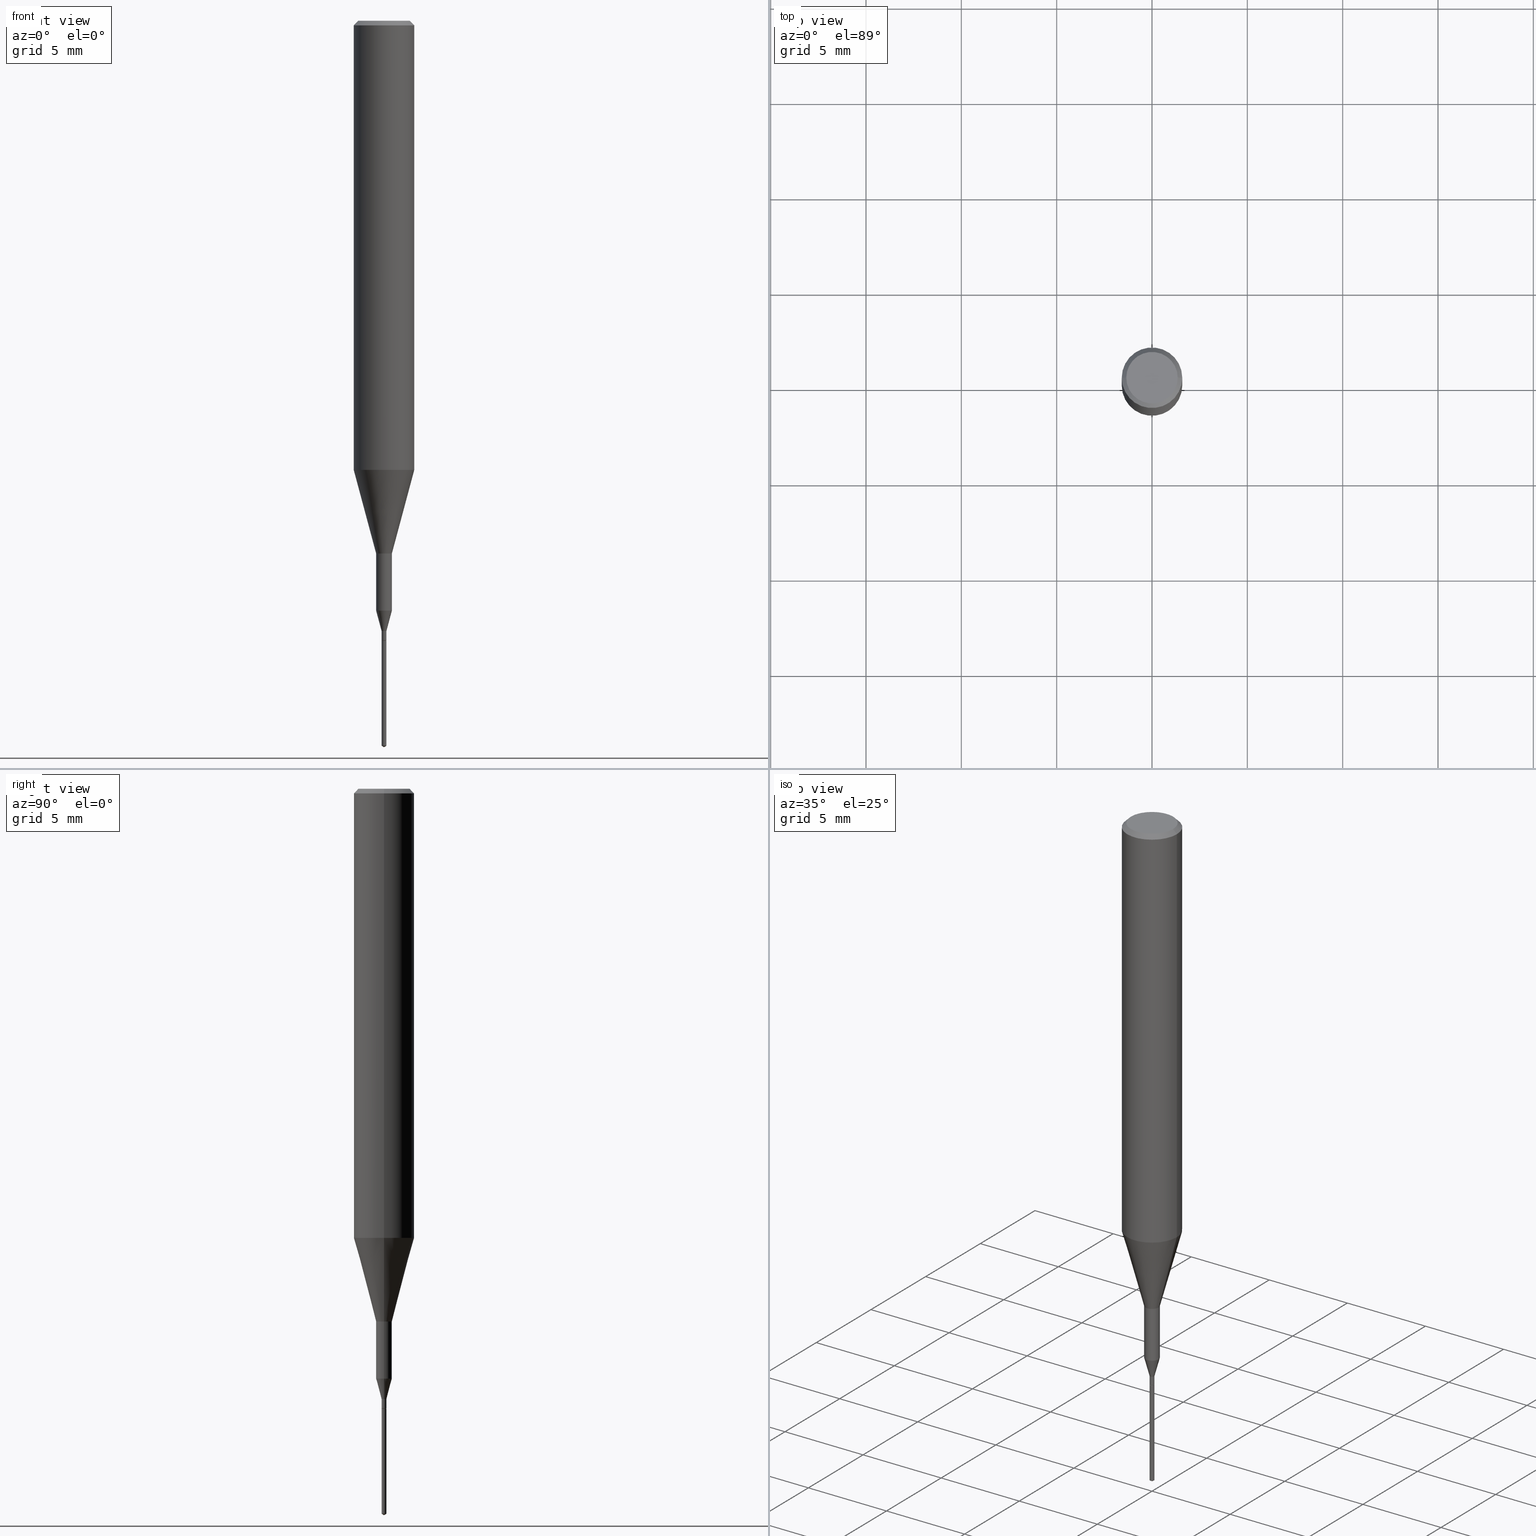
[diagram: canonical four-view strip — front | top / right | iso, engineering-drawing reading convention]
A machine part, canonical four-view strip (front | top / right | iso — engineering-drawing reading convention). The complete STEP part file that produces these views, byte-faithful:
ISO-10303-21;
HEADER;
FILE_DESCRIPTION (( 'STEP AP203' ),
    '1' );
FILE_NAME ('07091.STEP',
    '2024-04-19T13:29:49',
    ( '' ),
    ( '' ),
    'SwSTEP 2.0',
    'SolidWorks 2023',
    '' );
FILE_SCHEMA (( 'CONFIG_CONTROL_DESIGN' ));
ENDSEC;

DATA;
#1 = DESIGN_CONTEXT ( 'detailed design', #218, 'design' ) ;
#2 = EDGE_LOOP ( 'NONE', ( #406, #477, #11, #392 ) ) ;
#3 = DIRECTION ( 'NONE',  ( 1.000000000000000000, -6.982962677686311676E-15, 0.000000000000000000 ) ) ;
#4 = CONICAL_SURFACE ( 'NONE', #195, 65.52281426576575996, 1.029744258676636548 ) ;
#5 = EDGE_LOOP ( 'NONE', ( #154, #497, #470, #178 ) ) ;
#6 = LINE ( 'NONE', #279, #380 ) ;
#7 = LOCAL_TIME ( 9, 29, 49.00000000000000000, #39 ) ;
#8 = PRODUCT_DEFINITION ( 'UNKNOWN', '', #568, #1 ) ;
#9 = EDGE_LOOP ( 'NONE', ( #299, #569, #191, #332 ) ) ;
#10 = DIRECTION ( 'NONE',  ( 1.000000000000000000, -6.982962677686224112E-15, 0.000000000000000000 ) ) ;
#11 = ORIENTED_EDGE ( 'NONE', *, *, #118, .T. ) ;
#12 = ORIENTED_EDGE ( 'NONE', *, *, #545, .F. ) ;
#13 = DIRECTION ( 'NONE',  ( 6.982962677686265922E-15, 1.000000000000000000, -3.487224383137281571E-15 ) ) ;
#14 = ORIENTED_EDGE ( 'NONE', *, *, #181, .F. ) ;
#15 = AXIS2_PLACEMENT_3D ( 'NONE', #403, #413, #93 ) ;
#16 = CARTESIAN_POINT ( 'NONE',  ( 3.130200071916974821E-29, -4.469096113719226630E-15, -1.280000000000000027 ) ) ;
#17 = CONICAL_SURFACE ( 'NONE', #15, 0.01625000000000000056, 0.2617993877991491858 ) ;
#18 = CIRCLE ( 'NONE', #44, 0.005000000000000014849 ) ;
#19 = FACE_OUTER_BOUND ( 'NONE', #2, .T. ) ;
#20 = ORIENTED_EDGE ( 'NONE', *, *, #532, .T. ) ;
#21 = DIRECTION ( 'NONE',  ( -2.445468806185136597E-29, 3.491481338843145583E-15, 1.000000000000000000 ) ) ;
#22 = CARTESIAN_POINT ( 'NONE',  ( 0.01625000000000000056, -4.366147790764551922E-15, -1.218014428414850414 ) ) ;
#23 = EDGE_CURVE ( 'NONE', #98, #559, #72, .T. ) ;
#24 = ORIENTED_EDGE ( 'NONE', *, *, #155, .T. ) ;
#25 = DIRECTION ( 'NONE',  ( 1.000000000000000000, -6.982962677686224112E-15, 0.000000000000000000 ) ) ;
#26 = AXIS2_PLACEMENT_3D ( 'NONE', #206, #530, #68 ) ;
#27 = EDGE_CURVE ( 'NONE', #65, #187, #417, .T. ) ;
#28 = CARTESIAN_POINT ( 'NONE',  ( 3.552713678804161195E-17, 0.004999999999994772515, -1.496995696904862116 ) ) ;
#29 = DIRECTION ( 'NONE',  ( 0.7071067811866128539, -2.468850131082941397E-15, 0.7071067811864821806 ) ) ;
#30 = CARTESIAN_POINT ( 'NONE',  ( 2.267909797027042920E-29, -3.237974131778804114E-15, -0.9273926501499395458 ) ) ;
#31 = LINE ( 'NONE', #67, #242 ) ;
#32 = CARTESIAN_POINT ( 'NONE',  ( -3.491481338839468973E-17, -0.005000000000005223356, -1.496995696904862116 ) ) ;
#33 = ADVANCED_FACE ( 'NONE', ( #525 ), #352, .T. ) ;
#34 = ORIENTED_EDGE ( 'NONE', *, *, #308, .T. ) ;
#35 = CONICAL_SURFACE ( 'NONE', #409, 65.52281426576575996, 1.029744258676636548 ) ;
#36 = DIRECTION ( 'NONE',  ( 1.000000000000000000, -6.982962677686265922E-15, 4.876176775795935793E-29 ) ) ;
#37 = PERSON_AND_ORGANIZATION ( #369, #459 ) ;
#38 = DIRECTION ( 'NONE',  ( -2.445468806185136597E-29, 3.491481338843145583E-15, 1.000000000000000000 ) ) ;
#39 = COORDINATED_UNIVERSAL_TIME_OFFSET ( 5, 0, .BEHIND. ) ;
#40 = DIRECTION ( 'NONE',  ( -2.438088387897960049E-29, 3.491481338843145188E-15, 1.000000000000000000 ) ) ;
#41 = APPLICATION_CONTEXT ( 'configuration controlled 3d designs of mechanical parts and assemblies' ) ;
#42 = ADVANCED_FACE ( 'NONE', ( #579 ), #260, .T. ) ;
#43 = ORIENTED_EDGE ( 'NONE', *, *, #60, .F. ) ;
#44 = AXIS2_PLACEMENT_3D ( 'NONE', #449, #38, #177 ) ;
#45 = APPROVAL_PERSON_ORGANIZATION ( #87, #287, #92 ) ;
#46 = CARTESIAN_POINT ( 'NONE',  ( 2.267909797027042920E-29, -3.237974131778804114E-15, -0.9273926501499395458 ) ) ;
#47 = EDGE_LOOP ( 'NONE', ( #284, #229, #337, #524 ) ) ;
#48 = CARTESIAN_POINT ( 'NONE',  ( 0.06250000000000011102, -3.674409299134196572E-15, -0.9273926501499395458 ) ) ;
#49 = EDGE_CURVE ( 'NONE', #559, #509, #146, .T. ) ;
#50 = FACE_OUTER_BOUND ( 'NONE', #133, .T. ) ;
#51 = ADVANCED_FACE ( 'NONE', ( #296 ), #257, .T. ) ;
#52 = CLOSED_SHELL ( 'NONE', ( #549, #517, #535, #104, #219, #576, #372, #255, #492, #51, #33, #42, #244, #480, #230, #83 ) ) ;
#53 = FACE_OUTER_BOUND ( 'NONE', #474, .T. ) ;
#54 = CC_DESIGN_APPROVAL ( #424, ( #197 ) ) ;
#55 = ORIENTED_EDGE ( 'NONE', *, *, #155, .F. ) ;
#56 = VERTEX_POINT ( 'NONE', #113 ) ;
#57 = CARTESIAN_POINT ( 'NONE',  ( 3.130200071916974821E-29, -4.469096113719226630E-15, -1.280000000000000027 ) ) ;
#58 = FACE_OUTER_BOUND ( 'NONE', #348, .T. ) ;
#59 = ORIENTED_EDGE ( 'NONE', *, *, #433, .F. ) ;
#60 = EDGE_CURVE ( 'NONE', #374, #562, #31, .T. ) ;
#61 = CIRCLE ( 'NONE', #291, 0.004500000000000000527 ) ;
#62 = DIRECTION ( 'NONE',  ( -0.7071067811865452413, 2.468850131082233000E-15, -0.7071067811865497932 ) ) ;
#63 = CONICAL_SURFACE ( 'NONE', #399, 0.004500000000000000527, 0.7853981633975407606 ) ;
#64 = LOCAL_TIME ( 9, 29, 49.00000000000000000, #448 ) ;
#65 = VERTEX_POINT ( 'NONE', #22 ) ;
#66 = CARTESIAN_POINT ( 'NONE',  ( -0.06250000000000000000, -1.191264174815165938E-15, -0.009375000000000069042 ) ) ;
#67 = CARTESIAN_POINT ( 'NONE',  ( -0.06250000000000005551, 4.440892098500630106E-16, -3.074334431409318916E-30 ) ) ;
#68 = DIRECTION ( 'NONE',  ( 1.000000000000000000, -6.982962677686265922E-15, 4.876176775795935793E-29 ) ) ;
#69 = DIRECTION ( 'NONE',  ( -5.985567269335877382E-15, -0.8571673007021012314, 0.5150380749100724742 ) ) ;
#70 = CC_DESIGN_DATE_AND_TIME_ASSIGNMENT ( #311, #261, ( #197 ) ) ;
#71 = CARTESIAN_POINT ( 'NONE',  ( 0.01625000000000000056, -4.366147790764551922E-15, -1.218014428414850414 ) ) ;
#72 = LINE ( 'NONE', #120, #184 ) ;
#73 = VECTOR ( 'NONE', #297, 39.37007874015748143 ) ;
#74 = DIRECTION ( 'NONE',  ( -2.445468806185136597E-29, 3.491481338843145583E-15, 1.000000000000000000 ) ) ;
#75 = EDGE_CURVE ( 'NONE', #316, #188, #61, .T. ) ;
#76 = DIRECTION ( 'NONE',  ( -2.445468806185136597E-29, 3.491481338843145583E-15, 1.000000000000000000 ) ) ;
#77 = CARTESIAN_POINT ( 'NONE',  ( 0.000000000000000000, 0.000000000000000000, 0.000000000000000000 ) ) ;
#78 = DIRECTION ( 'NONE',  ( 0.000000000000000000, 0.000000000000000000, 1.000000000000000000 ) ) ;
#79 = DIRECTION ( 'NONE',  ( -2.445468806185136877E-29, 3.491481338843145188E-15, 1.000000000000000000 ) ) ;
#80 = PERSON_AND_ORGANIZATION_ROLE ( 'design_owner' ) ;
#81 = CARTESIAN_POINT ( 'NONE',  ( -0.004999999999999991430, -4.431823236261800085E-15, -1.279500000000000082 ) ) ;
#82 = ORIENTED_EDGE ( 'NONE', *, *, #414, .T. ) ;
#83 = ADVANCED_FACE ( 'NONE', ( #534 ), #482, .F. ) ;
#84 = COORDINATED_UNIVERSAL_TIME_OFFSET ( 5, 0, .BEHIND. ) ;
#85 = DIRECTION ( 'NONE',  ( -1.000000000000000000, 6.982962677686266711E-15, 0.000000000000000000 ) ) ;
#86 = APPROVAL ( #274, 'UNSPECIFIED' ) ;
#87 = PERSON_AND_ORGANIZATION ( #369, #459 ) ;
#88 = PLANE ( 'NONE',  #457 ) ;
#89 = ORIENTED_EDGE ( 'NONE', *, *, #131, .F. ) ;
#90 = CIRCLE ( 'NONE', #129, 0.004999999999999991430 ) ;
#91 = VECTOR ( 'NONE', #429, 39.37007874015748143 ) ;
#92 = APPROVAL_ROLE ( '' ) ;
#93 = DIRECTION ( 'NONE',  ( 1.000000000000000000, -6.982962677686258033E-15, 0.000000000000000000 ) ) ;
#94 = EDGE_CURVE ( 'NONE', #140, #276, #90, .T. ) ;
#95 = ORIENTED_EDGE ( 'NONE', *, *, #210, .F. ) ;
#96 = DIRECTION ( 'NONE',  ( -2.445468806185136597E-29, 3.491481338843145583E-15, 1.000000000000000000 ) ) ;
#97 = LINE ( 'NONE', #510, #343 ) ;
#98 = VERTEX_POINT ( 'NONE', #485 ) ;
#99 = CIRCLE ( 'NONE', #314, 0.004999999999999991430 ) ;
#100 = CARTESIAN_POINT ( 'NONE',  ( -9.272647440831351840E-28, 1.320560130707024342E-13, 37.87007874015748143 ) ) ;
#101 = LOCAL_TIME ( 9, 29, 49.00000000000000000, #495 ) ;
#102 = DIRECTION ( 'NONE',  ( -2.448441422466597749E-29, 3.487224383137281571E-15, 1.000000000000000000 ) ) ;
#103 = VERTEX_POINT ( 'NONE', #124 ) ;
#104 = ADVANCED_FACE ( 'NONE', ( #487 ), #254, .T. ) ;
#105 = EDGE_LOOP ( 'NONE', ( #112, #340, #142, #157 ) ) ;
#106 = VERTEX_POINT ( 'NONE', #208 ) ;
#107 = DIRECTION ( 'NONE',  ( -0.7071067811866128539, 7.493145998870590818E-15, 0.7071067811864821806 ) ) ;
#108 = ORIENTED_EDGE ( 'NONE', *, *, #200, .F. ) ;
#109 =( CONVERSION_BASED_UNIT ( 'INCH', #520 ) LENGTH_UNIT ( ) NAMED_UNIT ( #386 ) );
#110 = AXIS2_PLACEMENT_3D ( 'NONE', #435, #574, #481 ) ;
#111 = EDGE_CURVE ( 'NONE', #562, #333, #121, .T. ) ;
#112 = ORIENTED_EDGE ( 'NONE', *, *, #472, .F. ) ;
#113 = CARTESIAN_POINT ( 'NONE',  ( -0.05312499999999999861, 3.873362110279099094E-16, -5.787680772773044021E-18 ) ) ;
#114 = EDGE_LOOP ( 'NONE', ( #288, #220, #14, #551 ) ) ;
#115 = DIRECTION ( 'NONE',  ( 1.000000000000000000, -6.982962677686224112E-15, 0.000000000000000000 ) ) ;
#116 = ORIENTED_EDGE ( 'NONE', *, *, #210, .T. ) ;
#117 = LINE ( 'NONE', #301, #498 ) ;
#118 = EDGE_CURVE ( 'NONE', #188, #276, #117, .T. ) ;
#119 = CARTESIAN_POINT ( 'NONE',  ( 2.267909797027042920E-29, -3.237974131778804114E-15, -0.9273926501499395458 ) ) ;
#120 = CARTESIAN_POINT ( 'NONE',  ( 3.665052236019357010E-29, -5.241734381312934415E-15, -1.500000000000000222 ) ) ;
#121 = CIRCLE ( 'NONE', #437, 0.06250000000000000000 ) ;
#122 = VECTOR ( 'NONE', #183, 39.37007874015748143 ) ;
#123 = LINE ( 'NONE', #523, #506 ) ;
#124 = CARTESIAN_POINT ( 'NONE',  ( -0.005000000000000014849, -4.397781293208080371E-15, -1.260000000000000231 ) ) ;
#125 = DATE_AND_TIME ( #127, #101 ) ;
#126 = DIRECTION ( 'NONE',  ( 1.000000000000000000, -6.982962677686265922E-15, 0.000000000000000000 ) ) ;
#127 = CALENDAR_DATE ( 2024, 19, 4 ) ;
#128 = LINE ( 'NONE', #318, #455 ) ;
#129 = AXIS2_PLACEMENT_3D ( 'NONE', #387, #159, #346 ) ;
#130 = VECTOR ( 'NONE', #587, 39.37007874015748143 ) ;
#131 = EDGE_CURVE ( 'NONE', #434, #421, #566, .T. ) ;
#132 = CARTESIAN_POINT ( 'NONE',  ( -0.01625000000000000056, -4.137211452691134060E-15, -1.218014428414850414 ) ) ;
#133 = EDGE_LOOP ( 'NONE', ( #479, #192, #423 ) ) ;
#134 = DIRECTION ( 'NONE',  ( -6.982962677686265922E-15, -1.000000000000000000, 0.000000000000000000 ) ) ;
#135 = COORDINATED_UNIVERSAL_TIME_OFFSET ( 5, 0, .BEHIND. ) ;
#136 = DIRECTION ( 'NONE',  ( -2.448441422466597749E-29, 3.487224383137281571E-15, 1.000000000000000000 ) ) ;
#137 = AXIS2_PLACEMENT_3D ( 'NONE', #436, #531, #441 ) ;
#138 = EDGE_CURVE ( 'NONE', #106, #103, #324, .T. ) ;
#139 = AXIS2_PLACEMENT_3D ( 'NONE', #420, #326, #199 ) ;
#140 = VERTEX_POINT ( 'NONE', #81 ) ;
#141 = DIRECTION ( 'NONE',  ( 1.000000000000000000, -6.982962677686266711E-15, 4.876176775795935232E-29 ) ) ;
#142 = ORIENTED_EDGE ( 'NONE', *, *, #561, .T. ) ;
#143 = ORIENTED_EDGE ( 'NONE', *, *, #60, .T. ) ;
#144 = CARTESIAN_POINT ( 'NONE',  ( -0.01624999999999999709, -3.931188865428788594E-15, -1.100000000000000089 ) ) ;
#145 = DIRECTION ( 'NONE',  ( -2.448441422466597749E-29, 3.487224383137281571E-15, 1.000000000000000000 ) ) ;
#146 = CIRCLE ( 'NONE', #262, 0.004999999999999999237 ) ;
#147 = VECTOR ( 'NONE', #62, 39.37007874015748143 ) ;
#148 = ORIENTED_EDGE ( 'NONE', *, *, #75, .F. ) ;
#149 = DIRECTION ( 'NONE',  ( -2.445468806185136597E-29, 3.491481338843145583E-15, 1.000000000000000000 ) ) ;
#150 = CC_DESIGN_SECURITY_CLASSIFICATION ( #197, ( #568 ) ) ;
#151 = CC_DESIGN_PERSON_AND_ORGANIZATION_ASSIGNMENT ( #502, #543, ( #197 ) ) ;
#152 = DIRECTION ( 'NONE',  ( -2.448441422466597749E-29, 3.487224383137281571E-15, 1.000000000000000000 ) ) ;
#153 = FACE_OUTER_BOUND ( 'NONE', #5, .T. ) ;
#154 = ORIENTED_EDGE ( 'NONE', *, *, #327, .F. ) ;
#155 = EDGE_CURVE ( 'NONE', #335, #333, #590, .T. ) ;
#156 = AXIS2_PLACEMENT_3D ( 'NONE', #77, #74, #349 ) ;
#157 = ORIENTED_EDGE ( 'NONE', *, *, #528, .F. ) ;
#158 = DIRECTION ( 'NONE',  ( 1.000000000000000000, -6.982962677686258033E-15, 0.000000000000000000 ) ) ;
#159 = DIRECTION ( 'NONE',  ( -2.445468806185136597E-29, 3.491481338843145583E-15, 1.000000000000000000 ) ) ;
#160 = ORIENTED_EDGE ( 'NONE', *, *, #302, .T. ) ;
#161 = CARTESIAN_POINT ( 'NONE',  ( 2.292627005798582813E-31, -3.273263755165473266E-17, -0.009375000000000069042 ) ) ;
#162 = DIRECTION ( 'NONE',  ( -2.445468806185136597E-29, 3.491481338843145583E-15, 1.000000000000000000 ) ) ;
#163 = DIRECTION ( 'NONE',  ( 1.000000000000000000, -6.982962677686259611E-15, 0.000000000000000000 ) ) ;
#164 = CARTESIAN_POINT ( 'NONE',  ( 3.130200071916974821E-29, -4.469096113719226630E-15, -1.280000000000000027 ) ) ;
#165 = VECTOR ( 'NONE', #136, 39.37007874015748143 ) ;
#166 = CARTESIAN_POINT ( 'NONE',  ( 3.130200071916974821E-29, -4.469096113719226630E-15, -1.280000000000000027 ) ) ;
#167 = CONICAL_SURFACE ( 'NONE', #325, 0.06250000000000011102, 0.2617993877991501850 ) ;
#168 = EDGE_CURVE ( 'NONE', #98, #509, #172, .T. ) ;
#169 = DIRECTION ( 'NONE',  ( 1.000000000000000000, 0.000000000000000000, 0.000000000000000000 ) ) ;
#170 = DIRECTION ( 'NONE',  ( 1.000000000000000000, -6.982962677686265922E-15, 4.876176775795935793E-29 ) ) ;
#171 = DATE_AND_TIME ( #360, #7 ) ;
#172 = LINE ( 'NONE', #313, #281 ) ;
#173 = CC_DESIGN_PERSON_AND_ORGANIZATION_ASSIGNMENT ( #37, #223, ( #568 ) ) ;
#174 = LINE ( 'NONE', #48, #512 ) ;
#175 = AXIS2_PLACEMENT_3D ( 'NONE', #203, #356, #573 ) ;
#176 = AXIS2_PLACEMENT_3D ( 'NONE', #271, #310, #496 ) ;
#177 = DIRECTION ( 'NONE',  ( 1.000000000000000000, -6.982962677686311676E-15, 0.000000000000000000 ) ) ;
#178 = ORIENTED_EDGE ( 'NONE', *, *, #365, .F. ) ;
#179 = APPROVAL_ROLE ( '' ) ;
#180 = FACE_OUTER_BOUND ( 'NONE', #307, .T. ) ;
#181 = EDGE_CURVE ( 'NONE', #421, #434, #466, .T. ) ;
#182 = MANIFOLD_SOLID_BREP ( 'Body-Move/Copy2[2]', #52 ) ;
#183 = DIRECTION ( 'NONE',  ( -2.448441422466597749E-29, 3.487224383137281571E-15, 1.000000000000000000 ) ) ;
#184 = VECTOR ( 'NONE', #69, 39.37007874015748854 ) ;
#185 = AXIS2_PLACEMENT_3D ( 'NONE', #164, #396, #115 ) ;
#186 = LINE ( 'NONE', #463, #546 ) ;
#187 = VERTEX_POINT ( 'NONE', #132 ) ;
#188 = VERTEX_POINT ( 'NONE', #217 ) ;
#189 = ORIENTED_EDGE ( 'NONE', *, *, #131, .T. ) ;
#190 = CYLINDRICAL_SURFACE ( 'NONE', #447, 0.005000000000000000104 ) ;
#191 = ORIENTED_EDGE ( 'NONE', *, *, #27, .F. ) ;
#192 = ORIENTED_EDGE ( 'NONE', *, *, #23, .T. ) ;
#193 = EDGE_CURVE ( 'NONE', #421, #335, #174, .T. ) ;
#194 = LINE ( 'NONE', #556, #293 ) ;
#195 = AXIS2_PLACEMENT_3D ( 'NONE', #422, #145, #465 ) ;
#196 = DIRECTION ( 'NONE',  ( 2.448441422466597469E-29, -3.487224383137281571E-15, -1.000000000000000000 ) ) ;
#197 = SECURITY_CLASSIFICATION ( '', '', #317 ) ;
#198 = ORIENTED_EDGE ( 'NONE', *, *, #528, .T. ) ;
#199 = DIRECTION ( 'NONE',  ( -6.982962677686265922E-15, -1.000000000000000000, 0.000000000000000000 ) ) ;
#200 = EDGE_CURVE ( 'NONE', #335, #374, #538, .T. ) ;
#201 = ORIENTED_EDGE ( 'NONE', *, *, #23, .F. ) ;
#202 =( NAMED_UNIT ( * ) PLANE_ANGLE_UNIT ( ) SI_UNIT ( $, .RADIAN. ) );
#203 = CARTESIAN_POINT ( 'NONE',  ( 7.076796394983739835E-47, -1.010378970665454992E-32, -2.893840386385196200E-18 ) ) ;
#204 = AXIS2_PLACEMENT_3D ( 'NONE', #504, #540, #364 ) ;
#205 = EDGE_LOOP ( 'NONE', ( #494, #160, #108, #486 ) ) ;
#206 = CARTESIAN_POINT ( 'NONE',  ( 0.000000000000000000, 0.000000000000000000, 0.000000000000000000 ) ) ;
#207 = CIRCLE ( 'NONE', #426, 0.01625000000000000056 ) ;
#208 = CARTESIAN_POINT ( 'NONE',  ( 0.005000000000000014849, -4.434181300330795770E-15, -1.260000000000000231 ) ) ;
#209 = CARTESIAN_POINT ( 'NONE',  ( 2.690015686803650369E-29, -3.840629472727460101E-15, -1.100000000000000089 ) ) ;
#210 = EDGE_CURVE ( 'NONE', #140, #103, #128, .T. ) ;
#211 = PRODUCT_DEFINITION_SHAPE ( 'NONE', 'NONE',  #8 ) ;
#212 = DIRECTION ( 'NONE',  ( -2.445468806185136877E-29, 3.491481338843145188E-15, 1.000000000000000000 ) ) ;
#213 = CARTESIAN_POINT ( 'NONE',  ( 0.000000000000000000, 0.000000000000000000, 0.000000000000000000 ) ) ;
#214 = CARTESIAN_POINT ( 'NONE',  ( 2.978616290171935481E-29, -4.252674647252150246E-15, -1.218014428414850414 ) ) ;
#215 = AXIS2_PLACEMENT_3D ( 'NONE', #537, #541, #134 ) ;
#216 = DATE_AND_TIME ( #319, #439 ) ;
#217 = CARTESIAN_POINT ( 'NONE',  ( 0.004500000000000000527, -4.500519445768814483E-15, -1.280000000000000027 ) ) ;
#218 = APPLICATION_CONTEXT ( 'configuration controlled 3d designs of mechanical parts and assemblies' ) ;
#219 = ADVANCED_FACE ( 'NONE', ( #268 ), #17, .T. ) ;
#220 = ORIENTED_EDGE ( 'NONE', *, *, #433, .T. ) ;
#221 = PERSON_AND_ORGANIZATION ( #369, #459 ) ;
#222 = FACE_OUTER_BOUND ( 'NONE', #430, .T. ) ;
#223 = PERSON_AND_ORGANIZATION_ROLE ( 'creator' ) ;
#224 = CARTESIAN_POINT ( 'NONE',  ( 0.004999999999999991430, -4.502265186438236775E-15, -1.279500000000000082 ) ) ;
#225 = AXIS2_PLACEMENT_3D ( 'NONE', #209, #395, #163 ) ;
#226 = CIRCLE ( 'NONE', #215, 0.005000000000000000104 ) ;
#227 = PERSON_AND_ORGANIZATION ( #369, #459 ) ;
#228 = FACE_OUTER_BOUND ( 'NONE', #303, .T. ) ;
#229 = ORIENTED_EDGE ( 'NONE', *, *, #390, .T. ) ;
#230 = ADVANCED_FACE ( 'NONE', ( #222 ), #488, .T. ) ;
#231 = ORIENTED_EDGE ( 'NONE', *, *, #49, .T. ) ;
#232 = DIRECTION ( 'NONE',  ( -2.445468806185136597E-29, 3.491481338843145583E-15, 1.000000000000000000 ) ) ;
#233 = DIRECTION ( 'NONE',  ( -2.445468806185136597E-29, 3.491481338843145583E-15, 1.000000000000000000 ) ) ;
#234 = AXIS2_PLACEMENT_3D ( 'NONE', #443, #298, #170 ) ;
#235 = CONICAL_SURFACE ( 'NONE', #567, 0.06250000000000011102, 0.2617993877991501850 ) ;
#236 = DIRECTION ( 'NONE',  ( -6.982962677686265922E-15, -1.000000000000000000, 0.000000000000000000 ) ) ;
#237 = EDGE_CURVE ( 'NONE', #559, #398, #368, .T. ) ;
#238 = DIRECTION ( 'NONE',  ( -2.448441422466597749E-29, 3.487224383137281571E-15, 1.000000000000000000 ) ) ;
#239 = ORIENTED_EDGE ( 'NONE', *, *, #552, .F. ) ;
#240 = EDGE_LOOP ( 'NONE', ( #95, #519, #82, #427 ) ) ;
#241 = DIRECTION ( 'NONE',  ( 1.000000000000000000, -6.982962677686344019E-15, 0.000000000000000000 ) ) ;
#242 = VECTOR ( 'NONE', #212, 39.37007874015748143 ) ;
#243 = ORIENTED_EDGE ( 'NONE', *, *, #200, .T. ) ;
#244 = ADVANCED_FACE ( 'NONE', ( #180 ), #167, .T. ) ;
#245 = CYLINDRICAL_SURFACE ( 'NONE', #371, 0.06250000000000005551 ) ;
#246 = ORIENTED_EDGE ( 'NONE', *, *, #111, .T. ) ;
#247 = ORIENTED_EDGE ( 'NONE', *, *, #49, .F. ) ;
#248 = ORIENTED_EDGE ( 'NONE', *, *, #357, .F. ) ;
#249 = DIRECTION ( 'NONE',  ( -1.000000000000000000, 6.982962677686266711E-15, 0.000000000000000000 ) ) ;
#250 = DIRECTION ( 'NONE',  ( -2.445468806185136597E-29, 3.491481338843145583E-15, 1.000000000000000000 ) ) ;
#251 = AXIS2_PLACEMENT_3D ( 'NONE', #544, #462, #126 ) ;
#252 = LINE ( 'NONE', #71, #73 ) ;
#253 = CC_DESIGN_APPROVAL ( #287, ( #8 ) ) ;
#254 = CYLINDRICAL_SURFACE ( 'NONE', #137, 0.01624999999999999709 ) ;
#255 = ADVANCED_FACE ( 'NONE', ( #228 ), #88, .F. ) ;
#256 = CARTESIAN_POINT ( 'NONE',  ( 0.05312499999999999861, -4.129888592719939842E-16, -5.787680772767651417E-18 ) ) ;
#257 = CYLINDRICAL_SURFACE ( 'NONE', #234, 0.005000000000000003574 ) ;
#258 = CARTESIAN_POINT ( 'NONE',  ( 2.978616290171935481E-29, -4.252674647252150246E-15, -1.218014428414850414 ) ) ;
#259 = ORIENTED_EDGE ( 'NONE', *, *, #273, .F. ) ;
#260 = CYLINDRICAL_SURFACE ( 'NONE', #156, 0.01624999999999999709 ) ;
#261 = DATE_TIME_ROLE ( 'classification_date' ) ;
#262 = AXIS2_PLACEMENT_3D ( 'NONE', #432, #446, #575 ) ;
#263 = EDGE_CURVE ( 'NONE', #103, #106, #18, .T. ) ;
#264 = CARTESIAN_POINT ( 'NONE',  ( 2.292627005798582813E-31, -3.273263755165473266E-17, -0.009375000000000069042 ) ) ;
#265 = AXIS2_PLACEMENT_3D ( 'NONE', #570, #76, #431 ) ;
#266 = DIRECTION ( 'NONE',  ( -2.445468806185136877E-29, 3.491481338843145188E-15, 1.000000000000000000 ) ) ;
#267 = ADVANCED_BREP_SHAPE_REPRESENTATION ( '07091', ( #376, #182, #489 ), #522 ) ;
#268 = FACE_OUTER_BOUND ( 'NONE', #9, .T. ) ;
#269 = UNCERTAINTY_MEASURE_WITH_UNIT (LENGTH_MEASURE( 1.000000000000000082E-05 ), #109, 'distance_accuracy_value', 'NONE');
#270 = PERSON_AND_ORGANIZATION ( #369, #459 ) ;
#271 = CARTESIAN_POINT ( 'NONE',  ( 1.415359278996747967E-46, -2.020757941330909984E-32, -5.787680772770392401E-18 ) ) ;
#272 = AXIS2_PLACEMENT_3D ( 'NONE', #264, #320, #85 ) ;
#273 = EDGE_CURVE ( 'NONE', #398, #585, #529, .T. ) ;
#274 = APPROVAL_STATUS ( 'not_yet_approved' ) ;
#275 = DIRECTION ( 'NONE',  ( 0.2588190451025214611, 1.565188264969620982E-15, 0.9659258262890679791 ) ) ;
#276 = VERTEX_POINT ( 'NONE', #224 ) ;
#277 = EDGE_LOOP ( 'NONE', ( #243, #143, #12, #55 ) ) ;
#278 = CARTESIAN_POINT ( 'NONE',  ( 3.130200071916974821E-29, -4.469096113719226630E-15, -1.280000000000000027 ) ) ;
#279 = CARTESIAN_POINT ( 'NONE',  ( -0.004500000000000000527, -4.437121690610021699E-15, -1.280000000000000027 ) ) ;
#280 = CC_DESIGN_DATE_AND_TIME_ASSIGNMENT ( #171, #578, ( #8 ) ) ;
#281 = VECTOR ( 'NONE', #452, 39.37007874015748854 ) ;
#282 = CONICAL_SURFACE ( 'NONE', #438, 0.06250000000000000000, 0.7853981633974450594 ) ;
#283 = CARTESIAN_POINT ( 'NONE',  ( 3.130200071916974821E-29, -4.469096113719226630E-15, -1.280000000000000027 ) ) ;
#284 = ORIENTED_EDGE ( 'NONE', *, *, #308, .F. ) ;
#285 = ORIENTED_EDGE ( 'NONE', *, *, #552, .T. ) ;
#286 = LINE ( 'NONE', #338, #147 ) ;
#287 = APPROVAL ( #536, 'UNSPECIFIED' ) ;
#288 = ORIENTED_EDGE ( 'NONE', *, *, #27, .T. ) ;
#289 = ORIENTED_EDGE ( 'NONE', *, *, #414, .F. ) ;
#290 = DIRECTION ( 'NONE',  ( -2.445468806185136877E-29, 3.491481338843145188E-15, 1.000000000000000000 ) ) ;
#291 = AXIS2_PLACEMENT_3D ( 'NONE', #166, #250, #25 ) ;
#292 = EDGE_LOOP ( 'NONE', ( #59, #198, #341, #89 ) ) ;
#293 = VECTOR ( 'NONE', #378, 39.37007874015748143 ) ;
#294 = CYLINDRICAL_SURFACE ( 'NONE', #110, 0.06250000000000005551 ) ;
#295 = ORIENTED_EDGE ( 'NONE', *, *, #336, .T. ) ;
#296 = FACE_OUTER_BOUND ( 'NONE', #240, .T. ) ;
#297 = DIRECTION ( 'NONE',  ( 0.2588190451025205174, 1.565188264969628476E-15, 0.9659258262890684232 ) ) ;
#298 = DIRECTION ( 'NONE',  ( -2.445468806185136597E-29, 3.491481338843145583E-15, 1.000000000000000000 ) ) ;
#299 = ORIENTED_EDGE ( 'NONE', *, *, #138, .T. ) ;
#300 = DIRECTION ( 'NONE',  ( -2.445468806185136597E-29, 3.491481338843145583E-15, 1.000000000000000000 ) ) ;
#301 = CARTESIAN_POINT ( 'NONE',  ( 0.004500000000000000527, -4.500519445768814483E-15, -1.280000000000000027 ) ) ;
#302 = EDGE_CURVE ( 'NONE', #434, #374, #505, .T. ) ;
#303 = EDGE_LOOP ( 'NONE', ( #473, #148 ) ) ;
#304 = CIRCLE ( 'NONE', #139, 0.004999999999999999237 ) ;
#305 = DIRECTION ( 'NONE',  ( -2.445468806185136597E-29, 3.491481338843145583E-15, 1.000000000000000000 ) ) ;
#306 = DIRECTION ( 'NONE',  ( -2.445468806185136877E-29, 3.491481338843145188E-15, 1.000000000000000000 ) ) ;
#307 = EDGE_LOOP ( 'NONE', ( #377, #189, #464, #239 ) ) ;
#308 = EDGE_CURVE ( 'NONE', #509, #585, #501, .T. ) ;
#309 = APPROVAL_DATE_TIME ( #125, #86 ) ;
#310 = DIRECTION ( 'NONE',  ( -2.445468806185136597E-29, 3.491481338843145583E-15, 1.000000000000000000 ) ) ;
#311 = DATE_AND_TIME ( #461, #539 ) ;
#312 = AXIS2_PLACEMENT_3D ( 'NONE', #351, #527, #3 ) ;
#313 = CARTESIAN_POINT ( 'NONE',  ( 3.672728863519792168E-29, -5.230836574705921568E-15, -1.500000000000000222 ) ) ;
#314 = AXIS2_PLACEMENT_3D ( 'NONE', #511, #475, #241 ) ;
#315 = APPROVAL_PERSON_ORGANIZATION ( #322, #424, #358 ) ;
#316 = VERTEX_POINT ( 'NONE', #370 ) ;
#317 = SECURITY_CLASSIFICATION_LEVEL ( 'unclassified' ) ;
#318 = CARTESIAN_POINT ( 'NONE',  ( -0.005000000000000003574, 3.552713678800503469E-17, -2.459467545127454888E-31 ) ) ;
#319 = CALENDAR_DATE ( 2024, 19, 4 ) ;
#320 = DIRECTION ( 'NONE',  ( 2.445468806185136597E-29, -3.491481338843145583E-15, -1.000000000000000000 ) ) ;
#321 = EDGE_CURVE ( 'NONE', #585, #398, #226, .T. ) ;
#322 = PERSON_AND_ORGANIZATION ( #369, #459 ) ;
#323 = DIRECTION ( 'NONE',  ( 1.000000000000000000, -6.982962677686265922E-15, 0.000000000000000000 ) ) ;
#324 = CIRCLE ( 'NONE', #312, 0.005000000000000014849 ) ;
#325 = AXIS2_PLACEMENT_3D ( 'NONE', #46, #232, #323 ) ;
#326 = DIRECTION ( 'NONE',  ( -2.448441422466597749E-29, 3.487224383137281571E-15, 1.000000000000000000 ) ) ;
#327 = EDGE_CURVE ( 'NONE', #507, #56, #355, .T. ) ;
#328 = CARTESIAN_POINT ( 'NONE',  ( -0.06250000000000011102, -2.793884921928740709E-15, -0.9273926501499395458 ) ) ;
#329 = EDGE_LOOP ( 'NONE', ( #295, #116, #381, #289 ) ) ;
#330 = DIRECTION ( 'NONE',  ( -2.445468806185136877E-29, 3.491481338843145188E-15, 1.000000000000000000 ) ) ;
#331 = AXIS2_PLACEMENT_3D ( 'NONE', #57, #196, #13 ) ;
#332 = ORIENTED_EDGE ( 'NONE', *, *, #561, .F. ) ;
#333 = VERTEX_POINT ( 'NONE', #456 ) ;
#334 = FACE_OUTER_BOUND ( 'NONE', #557, .T. ) ;
#335 = VERTEX_POINT ( 'NONE', #411 ) ;
#336 = EDGE_CURVE ( 'NONE', #276, #140, #99, .T. ) ;
#337 = ORIENTED_EDGE ( 'NONE', *, *, #237, .T. ) ;
#338 = CARTESIAN_POINT ( 'NONE',  ( -0.06250000000000000000, 4.037025298037369491E-16, -0.009375000000000069042 ) ) ;
#339 = ADVANCED_FACE ( 'NONE', ( #53 ), #190, .T. ) ;
#340 = ORIENTED_EDGE ( 'NONE', *, *, #263, .T. ) ;
#341 = ORIENTED_EDGE ( 'NONE', *, *, #580, .T. ) ;
#342 = DIRECTION ( 'NONE',  ( 1.000000000000000000, -6.982962677686266711E-15, 0.000000000000000000 ) ) ;
#343 = VECTOR ( 'NONE', #290, 39.37007874015748143 ) ;
#344 = CC_DESIGN_APPROVAL ( #86, ( #568 ) ) ;
#345 = CYLINDRICAL_SURFACE ( 'NONE', #26, 0.005000000000000003574 ) ;
#346 = DIRECTION ( 'NONE',  ( 1.000000000000000000, -6.982962677686344019E-15, 0.000000000000000000 ) ) ;
#347 = ADVANCED_FACE ( 'NONE', ( #550 ), #4, .T. ) ;
#348 = EDGE_LOOP ( 'NONE', ( #20, #415, #469, #513 ) ) ;
#349 = DIRECTION ( 'NONE',  ( 1.000000000000000000, -6.982962677686267499E-15, 4.876176775795936353E-29 ) ) ;
#350 = DIRECTION ( 'NONE',  ( 1.000000000000000000, -6.982962677686265922E-15, 0.000000000000000000 ) ) ;
#351 = CARTESIAN_POINT ( 'NONE',  ( 3.081290695793272291E-29, -4.399266486942364120E-15, -1.260000000000000231 ) ) ;
#352 = CONICAL_SURFACE ( 'NONE', #379, 0.01625000000000000056, 0.2617993877991491858 ) ;
#353 = AXIS2_PLACEMENT_3D ( 'NONE', #508, #149, #10 ) ;
#354 = FACE_OUTER_BOUND ( 'NONE', #205, .T. ) ;
#355 = CIRCLE ( 'NONE', #176, 0.05312499999999999861 ) ;
#356 = DIRECTION ( 'NONE',  ( 2.438088387897960049E-29, -3.491481338843145188E-15, -1.000000000000000000 ) ) ;
#357 = EDGE_CURVE ( 'NONE', #507, #333, #416, .T. ) ;
#358 = APPROVAL_ROLE ( '' ) ;
#359 = DIRECTION ( 'NONE',  ( -2.445468806185136597E-29, 3.491481338843145583E-15, 1.000000000000000000 ) ) ;
#360 = CALENDAR_DATE ( 2024, 19, 4 ) ;
#361 = DIRECTION ( 'NONE',  ( -6.982962677686265922E-15, -1.000000000000000000, 0.000000000000000000 ) ) ;
#362 = APPROVAL_DATE_TIME ( #407, #424 ) ;
#363 = AXIS2_PLACEMENT_3D ( 'NONE', #214, #305, #491 ) ;
#364 = DIRECTION ( 'NONE',  ( 1.000000000000000000, -6.982962677686259611E-15, 0.000000000000000000 ) ) ;
#365 = EDGE_CURVE ( 'NONE', #56, #562, #286, .T. ) ;
#366 = CARTESIAN_POINT ( 'NONE',  ( 3.552713678803629946E-17, 0.004999999999995530589, -1.280000000000000027 ) ) ;
#367 = PERSON_AND_ORGANIZATION_ROLE ( 'design_supplier' ) ;
#368 = LINE ( 'NONE', #405, #165 ) ;
#369 = PERSON ( 'UNSPECIFIED', 'UNSPECIFIED', 'UNSPECIFIED', ('UNSPECIFIED'), ('UNSPECIFIED'), ('UNSPECIFIED') ) ;
#370 = CARTESIAN_POINT ( 'NONE',  ( -0.004500000000000000527, -4.434472463435912075E-15, -1.280000000000000027 ) ) ;
#371 = AXIS2_PLACEMENT_3D ( 'NONE', #382, #96, #141 ) ;
#372 = ADVANCED_FACE ( 'NONE', ( #58 ), #558, .T. ) ;
#373 = DIRECTION ( 'NONE',  ( 1.000000000000000000, -6.982962677686224112E-15, 0.000000000000000000 ) ) ;
#374 = VERTEX_POINT ( 'NONE', #328 ) ;
#375 = PLANE ( 'NONE',  #331 ) ;
#376 = MANIFOLD_SOLID_BREP ( 'Body-Move/Copy2[1]', #584 ) ;
#377 = ORIENTED_EDGE ( 'NONE', *, *, #302, .F. ) ;
#378 = DIRECTION ( 'NONE',  ( -0.2588190451025205174, 5.211531920934544731E-15, 0.9659258262890684232 ) ) ;
#379 = AXIS2_PLACEMENT_3D ( 'NONE', #394, #359, #565 ) ;
#380 = VECTOR ( 'NONE', #107, 39.37007874015748143 ) ;
#381 = ORIENTED_EDGE ( 'NONE', *, *, #138, .F. ) ;
#382 = CARTESIAN_POINT ( 'NONE',  ( 0.000000000000000000, 0.000000000000000000, 0.000000000000000000 ) ) ;
#383 = CC_DESIGN_PERSON_AND_ORGANIZATION_ASSIGNMENT ( #221, #367, ( #568 ) ) ;
#384 = ORIENTED_EDGE ( 'NONE', *, *, #327, .T. ) ;
#385 = CARTESIAN_POINT ( 'NONE',  ( 3.552713678804164892E-17, 0.004999999999995530589, -1.280000000000000027 ) ) ;
#386 = DIMENSIONAL_EXPONENTS ( 1.000000000000000000, 0.000000000000000000, 0.000000000000000000, 0.000000000000000000, 0.000000000000000000, 0.000000000000000000, 0.000000000000000000 ) ;
#387 = CARTESIAN_POINT ( 'NONE',  ( 3.128977337513882580E-29, -4.467350373049805126E-15, -1.279500000000000082 ) ) ;
#388 = ADVANCED_FACE ( 'NONE', ( #471 ), #516, .T. ) ;
#389 = VECTOR ( 'NONE', #266, 39.37007874015748143 ) ;
#390 = EDGE_CURVE ( 'NONE', #509, #559, #304, .T. ) ;
#391 = AXIS2_PLACEMENT_3D ( 'NONE', #119, #300, #393 ) ;
#392 = ORIENTED_EDGE ( 'NONE', *, *, #94, .F. ) ;
#393 = DIRECTION ( 'NONE',  ( 1.000000000000000000, -6.982962677686265922E-15, 0.000000000000000000 ) ) ;
#394 = CARTESIAN_POINT ( 'NONE',  ( 2.978616290171935481E-29, -4.252674647252150246E-15, -1.218014428414850414 ) ) ;
#395 = DIRECTION ( 'NONE',  ( -2.445468806185136597E-29, 3.491481338843145583E-15, 1.000000000000000000 ) ) ;
#396 = DIRECTION ( 'NONE',  ( -2.445468806185136597E-29, 3.491481338843145583E-15, 1.000000000000000000 ) ) ;
#397 = ADVANCED_FACE ( 'NONE', ( #334 ), #375, .F. ) ;
#398 = VERTEX_POINT ( 'NONE', #553 ) ;
#399 = AXIS2_PLACEMENT_3D ( 'NONE', #278, #233, #373 ) ;
#400 = APPROVAL_STATUS ( 'not_yet_approved' ) ;
#401 = ORIENTED_EDGE ( 'NONE', *, *, #589, .T. ) ;
#402 = MECHANICAL_CONTEXT ( 'NONE', #41, 'mechanical' ) ;
#403 = CARTESIAN_POINT ( 'NONE',  ( 2.978616290171935481E-29, -4.252674647252150246E-15, -1.218014428414850414 ) ) ;
#404 = SHAPE_DEFINITION_REPRESENTATION ( #211, #267 ) ;
#405 = CARTESIAN_POINT ( 'NONE',  ( -3.491481338840003303E-17, -0.005000000000004468752, -1.280000000000000027 ) ) ;
#406 = ORIENTED_EDGE ( 'NONE', *, *, #450, .F. ) ;
#407 = DATE_AND_TIME ( #533, #64 ) ;
#408 = CARTESIAN_POINT ( 'NONE',  ( -0.06250000000000011102, -2.793884921928740709E-15, -0.9273926501499395458 ) ) ;
#409 = AXIS2_PLACEMENT_3D ( 'NONE', #100, #102, #548 ) ;
#410 = PERSON_AND_ORGANIZATION_ROLE ( 'creator' ) ;
#411 = CARTESIAN_POINT ( 'NONE',  ( 0.06250000000000011102, -3.674409299134196572E-15, -0.9273926501499395458 ) ) ;
#412 = ORIENTED_EDGE ( 'NONE', *, *, #321, .T. ) ;
#413 = DIRECTION ( 'NONE',  ( -2.445468806185136597E-29, 3.491481338843145583E-15, 1.000000000000000000 ) ) ;
#414 = EDGE_CURVE ( 'NONE', #276, #106, #97, .T. ) ;
#415 = ORIENTED_EDGE ( 'NONE', *, *, #450, .T. ) ;
#416 = LINE ( 'NONE', #425, #91 ) ;
#417 = CIRCLE ( 'NONE', #363, 0.01625000000000000056 ) ;
#418 = ORIENTED_EDGE ( 'NONE', *, *, #589, .F. ) ;
#419 = CIRCLE ( 'NONE', #185, 0.004500000000000000527 ) ;
#420 = CARTESIAN_POINT ( 'NONE',  ( 3.661501324715846281E-29, -5.225808799001728698E-15, -1.496995696904862116 ) ) ;
#421 = VERTEX_POINT ( 'NONE', #515 ) ;
#422 = CARTESIAN_POINT ( 'NONE',  ( -9.272647440831351840E-28, 1.320560130707024342E-13, 37.87007874015748143 ) ) ;
#423 = ORIENTED_EDGE ( 'NONE', *, *, #390, .F. ) ;
#424 = APPROVAL ( #400, 'UNSPECIFIED' ) ;
#425 = CARTESIAN_POINT ( 'NONE',  ( 0.06250000000000000000, -4.615137624123754923E-16, -0.009375000000000069042 ) ) ;
#426 = AXIS2_PLACEMENT_3D ( 'NONE', #258, #442, #158 ) ;
#427 = ORIENTED_EDGE ( 'NONE', *, *, #263, .F. ) ;
#428 = EDGE_LOOP ( 'NONE', ( #201, #518, #247 ) ) ;
#429 = DIRECTION ( 'NONE',  ( 0.7071067811865452413, -7.319954787623248157E-15, -0.7071067811865497932 ) ) ;
#430 = EDGE_LOOP ( 'NONE', ( #248, #418, #458, #246 ) ) ;
#431 = DIRECTION ( 'NONE',  ( 1.000000000000000000, -6.982962677686266711E-15, 4.875930095424100059E-29 ) ) ;
#432 = CARTESIAN_POINT ( 'NONE',  ( 3.661501324715846281E-29, -5.225808799001728698E-15, -1.496995696904862116 ) ) ;
#433 = EDGE_CURVE ( 'NONE', #187, #434, #186, .T. ) ;
#434 = VERTEX_POINT ( 'NONE', #144 ) ;
#435 = CARTESIAN_POINT ( 'NONE',  ( 0.000000000000000000, 0.000000000000000000, 0.000000000000000000 ) ) ;
#436 = CARTESIAN_POINT ( 'NONE',  ( 0.000000000000000000, 0.000000000000000000, 0.000000000000000000 ) ) ;
#437 = AXIS2_PLACEMENT_3D ( 'NONE', #571, #162, #526 ) ;
#438 = AXIS2_PLACEMENT_3D ( 'NONE', #445, #493, #249 ) ;
#439 = LOCAL_TIME ( 9, 29, 49.00000000000000000, #84 ) ;
#440 =( NAMED_UNIT ( * ) SI_UNIT ( $, .STERADIAN. ) SOLID_ANGLE_UNIT ( ) );
#441 = DIRECTION ( 'NONE',  ( 1.000000000000000000, -6.982962677686267499E-15, 4.876176775795936353E-29 ) ) ;
#442 = DIRECTION ( 'NONE',  ( -2.445468806185136597E-29, 3.491481338843145583E-15, 1.000000000000000000 ) ) ;
#443 = CARTESIAN_POINT ( 'NONE',  ( 0.000000000000000000, 0.000000000000000000, 0.000000000000000000 ) ) ;
#444 = CC_DESIGN_PERSON_AND_ORGANIZATION_ASSIGNMENT ( #227, #80, ( #542 ) ) ;
#445 = CARTESIAN_POINT ( 'NONE',  ( 2.292627005798582813E-31, -3.273263755165473266E-17, -0.009375000000000069042 ) ) ;
#446 = DIRECTION ( 'NONE',  ( -2.448441422466597749E-29, 3.487224383137281571E-15, 1.000000000000000000 ) ) ;
#447 = AXIS2_PLACEMENT_3D ( 'NONE', #283, #152, #478 ) ;
#448 = COORDINATED_UNIVERSAL_TIME_OFFSET ( 5, 0, .BEHIND. ) ;
#449 = CARTESIAN_POINT ( 'NONE',  ( 3.081290695793272291E-29, -4.399266486942364120E-15, -1.260000000000000231 ) ) ;
#450 = EDGE_CURVE ( 'NONE', #316, #140, #6, .T. ) ;
#451 = PERSON_AND_ORGANIZATION ( #369, #459 ) ;
#452 = DIRECTION ( 'NONE',  ( 6.090539988449712960E-15, 0.8571673007021047841, 0.5150380749100665900 ) ) ;
#453 = PRODUCT_RELATED_PRODUCT_CATEGORY ( 'detail', '', ( #542 ) ) ;
#454 = CARTESIAN_POINT ( 'NONE',  ( 3.130200071916974821E-29, -4.469096113719226630E-15, -1.280000000000000027 ) ) ;
#455 = VECTOR ( 'NONE', #79, 39.37007874015748143 ) ;
#456 = CARTESIAN_POINT ( 'NONE',  ( 0.06250000000000000000, -4.691678049070464390E-16, -0.009375000000000069042 ) ) ;
#457 = AXIS2_PLACEMENT_3D ( 'NONE', #454, #40, #36 ) ;
#458 = ORIENTED_EDGE ( 'NONE', *, *, #365, .T. ) ;
#459 = ORGANIZATION ( 'UNSPECIFIED', 'UNSPECIFIED', '' ) ;
#460 = ADVANCED_FACE ( 'NONE', ( #50 ), #35, .T. ) ;
#461 = CALENDAR_DATE ( 2024, 19, 4 ) ;
#462 = DIRECTION ( 'NONE',  ( -2.445468806185136597E-29, 3.491481338843145583E-15, 1.000000000000000000 ) ) ;
#463 = CARTESIAN_POINT ( 'NONE',  ( -0.01624999999999999709, 1.154631945610162595E-16, -7.993269521664220284E-31 ) ) ;
#464 = ORIENTED_EDGE ( 'NONE', *, *, #193, .T. ) ;
#465 = DIRECTION ( 'NONE',  ( -6.982962677686266711E-15, -1.000000000000000000, 3.468864327941735815E-15 ) ) ;
#466 = CIRCLE ( 'NONE', #204, 0.01624999999999999709 ) ;
#467 = CIRCLE ( 'NONE', #499, 0.06250000000000000000 ) ;
#468 = CIRCLE ( 'NONE', #265, 0.05312499999999999861 ) ;
#469 = ORIENTED_EDGE ( 'NONE', *, *, #336, .F. ) ;
#470 = ORIENTED_EDGE ( 'NONE', *, *, #545, .T. ) ;
#471 = FACE_OUTER_BOUND ( 'NONE', #47, .T. ) ;
#472 = EDGE_CURVE ( 'NONE', #103, #187, #194, .T. ) ;
#473 = ORIENTED_EDGE ( 'NONE', *, *, #532, .F. ) ;
#474 = EDGE_LOOP ( 'NONE', ( #231, #34, #259, #483 ) ) ;
#475 = DIRECTION ( 'NONE',  ( -2.445468806185136597E-29, 3.491481338843145583E-15, 1.000000000000000000 ) ) ;
#476 = ORIENTED_EDGE ( 'NONE', *, *, #111, .F. ) ;
#477 = ORIENTED_EDGE ( 'NONE', *, *, #75, .T. ) ;
#478 = DIRECTION ( 'NONE',  ( -6.982962677686265922E-15, -1.000000000000000000, 0.000000000000000000 ) ) ;
#479 = ORIENTED_EDGE ( 'NONE', *, *, #168, .F. ) ;
#480 = ADVANCED_FACE ( 'NONE', ( #560 ), #245, .T. ) ;
#481 = DIRECTION ( 'NONE',  ( 1.000000000000000000, -6.982962677686266711E-15, 4.876176775795935232E-29 ) ) ;
#482 = PLANE ( 'NONE',  #175 ) ;
#483 = ORIENTED_EDGE ( 'NONE', *, *, #237, .F. ) ;
#484 = FACE_OUTER_BOUND ( 'NONE', #329, .T. ) ;
#485 = CARTESIAN_POINT ( 'NONE',  ( 3.672662133699897044E-29, -5.230836574705923146E-15, -1.500000000000000222 ) ) ;
#486 = ORIENTED_EDGE ( 'NONE', *, *, #193, .F. ) ;
#487 = FACE_OUTER_BOUND ( 'NONE', #114, .T. ) ;
#488 = CONICAL_SURFACE ( 'NONE', #272, 0.06250000000000000000, 0.7853981633974450594 ) ;
#489 = AXIS2_PLACEMENT_3D ( 'NONE', #213, #78, #169 ) ;
#490 = APPLICATION_PROTOCOL_DEFINITION ( 'international standard', 'config_control_design', 1994, #41 ) ;
#491 = DIRECTION ( 'NONE',  ( 1.000000000000000000, -6.982962677686258033E-15, 0.000000000000000000 ) ) ;
#492 = ADVANCED_FACE ( 'NONE', ( #19 ), #63, .T. ) ;
#493 = DIRECTION ( 'NONE',  ( 2.445468806185136597E-29, -3.491481338843145583E-15, -1.000000000000000000 ) ) ;
#494 = ORIENTED_EDGE ( 'NONE', *, *, #181, .T. ) ;
#495 = COORDINATED_UNIVERSAL_TIME_OFFSET ( 5, 0, .BEHIND. ) ;
#496 = DIRECTION ( 'NONE',  ( 1.000000000000000000, -6.982962677686266711E-15, 4.875930095424100059E-29 ) ) ;
#497 = ORIENTED_EDGE ( 'NONE', *, *, #357, .T. ) ;
#498 = VECTOR ( 'NONE', #29, 39.37007874015748143 ) ;
#499 = AXIS2_PLACEMENT_3D ( 'NONE', #161, #21, #342 ) ;
#500 = CC_DESIGN_PERSON_AND_ORGANIZATION_ASSIGNMENT ( #451, #410, ( #8 ) ) ;
#501 = LINE ( 'NONE', #366, #122 ) ;
#502 = PERSON_AND_ORGANIZATION ( #369, #459 ) ;
#503 = CARTESIAN_POINT ( 'NONE',  ( 0.06250000000000005551, -4.364351673553920638E-16, 3.047610484872462323E-30 ) ) ;
#504 = CARTESIAN_POINT ( 'NONE',  ( 2.690015686803650369E-29, -3.840629472727460101E-15, -1.100000000000000089 ) ) ;
#505 = LINE ( 'NONE', #408, #130 ) ;
#506 = VECTOR ( 'NONE', #306, 39.37007874015748143 ) ;
#507 = VERTEX_POINT ( 'NONE', #256 ) ;
#508 = CARTESIAN_POINT ( 'NONE',  ( 3.130200071916974821E-29, -4.469096113719226630E-15, -1.280000000000000027 ) ) ;
#509 = VERTEX_POINT ( 'NONE', #28 ) ;
#510 = CARTESIAN_POINT ( 'NONE',  ( 0.005000000000000003574, -3.491481338843135327E-17, 2.438088387897969736E-31 ) ) ;
#511 = CARTESIAN_POINT ( 'NONE',  ( 3.128977337513882580E-29, -4.467350373049805126E-15, -1.279500000000000082 ) ) ;
#512 = VECTOR ( 'NONE', #275, 39.37007874015748143 ) ;
#513 = ORIENTED_EDGE ( 'NONE', *, *, #118, .F. ) ;
#514 = CIRCLE ( 'NONE', #391, 0.06250000000000011102 ) ;
#515 = CARTESIAN_POINT ( 'NONE',  ( 0.01624999999999999709, -3.954102616239861778E-15, -1.100000000000000089 ) ) ;
#516 = CYLINDRICAL_SURFACE ( 'NONE', #577, 0.005000000000000000104 ) ;
#517 = ADVANCED_FACE ( 'NONE', ( #564 ), #294, .T. ) ;
#518 = ORIENTED_EDGE ( 'NONE', *, *, #168, .T. ) ;
#519 = ORIENTED_EDGE ( 'NONE', *, *, #94, .T. ) ;
#520 = LENGTH_MEASURE_WITH_UNIT ( LENGTH_MEASURE( 0.02539999999999999897 ), #563 );
#521 = AXIS2_PLACEMENT_3D ( 'NONE', #583, #582, #361 ) ;
#522 =( GEOMETRIC_REPRESENTATION_CONTEXT ( 3 ) GLOBAL_UNCERTAINTY_ASSIGNED_CONTEXT ( ( #269 ) ) GLOBAL_UNIT_ASSIGNED_CONTEXT ( ( #109, #202, #440 ) ) REPRESENTATION_CONTEXT ( 'NONE', 'WORKASPACE' ) );
#523 = CARTESIAN_POINT ( 'NONE',  ( 0.01624999999999999709, -1.134731435124018242E-16, 7.923787260668394963E-31 ) ) ;
#524 = ORIENTED_EDGE ( 'NONE', *, *, #321, .F. ) ;
#525 = FACE_OUTER_BOUND ( 'NONE', #105, .T. ) ;
#526 = DIRECTION ( 'NONE',  ( 1.000000000000000000, -6.982962677686266711E-15, 0.000000000000000000 ) ) ;
#527 = DIRECTION ( 'NONE',  ( -2.445468806185136597E-29, 3.491481338843145583E-15, 1.000000000000000000 ) ) ;
#528 = EDGE_CURVE ( 'NONE', #187, #65, #207, .T. ) ;
#529 = CIRCLE ( 'NONE', #521, 0.005000000000000000104 ) ;
#530 = DIRECTION ( 'NONE',  ( -2.445468806185136597E-29, 3.491481338843145583E-15, 1.000000000000000000 ) ) ;
#531 = DIRECTION ( 'NONE',  ( -2.445468806185136597E-29, 3.491481338843145583E-15, 1.000000000000000000 ) ) ;
#532 = EDGE_CURVE ( 'NONE', #188, #316, #419, .T. ) ;
#533 = CALENDAR_DATE ( 2024, 19, 4 ) ;
#534 = FACE_OUTER_BOUND ( 'NONE', #555, .T. ) ;
#535 = ADVANCED_FACE ( 'NONE', ( #354 ), #235, .T. ) ;
#536 = APPROVAL_STATUS ( 'not_yet_approved' ) ;
#537 = CARTESIAN_POINT ( 'NONE',  ( 3.130200071916974821E-29, -4.469096113719226630E-15, -1.280000000000000027 ) ) ;
#538 = CIRCLE ( 'NONE', #251, 0.06250000000000011102 ) ;
#539 = LOCAL_TIME ( 9, 29, 49.00000000000000000, #135 ) ;
#540 = DIRECTION ( 'NONE',  ( -2.445468806185136597E-29, 3.491481338843145583E-15, 1.000000000000000000 ) ) ;
#541 = DIRECTION ( 'NONE',  ( -2.448441422466597749E-29, 3.487224383137281571E-15, 1.000000000000000000 ) ) ;
#542 = PRODUCT ( '07091', '07091', '', ( #402 ) ) ;
#543 = PERSON_AND_ORGANIZATION_ROLE ( 'classification_officer' ) ;
#544 = CARTESIAN_POINT ( 'NONE',  ( 2.267909797027042920E-29, -3.237974131778804114E-15, -0.9273926501499395458 ) ) ;
#545 = EDGE_CURVE ( 'NONE', #333, #562, #467, .T. ) ;
#546 = VECTOR ( 'NONE', #330, 39.37007874015748143 ) ;
#547 = EDGE_LOOP ( 'NONE', ( #43, #285, #24, #476 ) ) ;
#548 = DIRECTION ( 'NONE',  ( -6.982962677686266711E-15, -1.000000000000000000, 3.468864327941735815E-15 ) ) ;
#549 = ADVANCED_FACE ( 'NONE', ( #153 ), #282, .T. ) ;
#550 = FACE_OUTER_BOUND ( 'NONE', #428, .T. ) ;
#551 = ORIENTED_EDGE ( 'NONE', *, *, #580, .F. ) ;
#552 = EDGE_CURVE ( 'NONE', #374, #335, #514, .T. ) ;
#553 = CARTESIAN_POINT ( 'NONE',  ( -3.491481338840003303E-17, -0.005000000000004468752, -1.280000000000000027 ) ) ;
#554 = ORIENTED_EDGE ( 'NONE', *, *, #273, .T. ) ;
#555 = EDGE_LOOP ( 'NONE', ( #401, #384 ) ) ;
#556 = CARTESIAN_POINT ( 'NONE',  ( -0.01625000000000000056, -4.137211452691134060E-15, -1.218014428414850414 ) ) ;
#557 = EDGE_LOOP ( 'NONE', ( #554, #412 ) ) ;
#558 = CONICAL_SURFACE ( 'NONE', #353, 0.004500000000000000527, 0.7853981633975407606 ) ;
#559 = VERTEX_POINT ( 'NONE', #32 ) ;
#560 = FACE_OUTER_BOUND ( 'NONE', #547, .T. ) ;
#561 = EDGE_CURVE ( 'NONE', #106, #65, #252, .T. ) ;
#562 = VERTEX_POINT ( 'NONE', #66 ) ;
#563 =( LENGTH_UNIT ( ) NAMED_UNIT ( * ) SI_UNIT ( $, .METRE. ) );
#564 = FACE_OUTER_BOUND ( 'NONE', #277, .T. ) ;
#565 = DIRECTION ( 'NONE',  ( 1.000000000000000000, -6.982962677686258033E-15, 0.000000000000000000 ) ) ;
#566 = CIRCLE ( 'NONE', #225, 0.01624999999999999709 ) ;
#567 = AXIS2_PLACEMENT_3D ( 'NONE', #30, #572, #350 ) ;
#568 = PRODUCT_DEFINITION_FORMATION_WITH_SPECIFIED_SOURCE ( 'ANY', '', #542, .NOT_KNOWN. ) ;
#569 = ORIENTED_EDGE ( 'NONE', *, *, #472, .T. ) ;
#570 = CARTESIAN_POINT ( 'NONE',  ( 1.415359278996747967E-46, -2.020757941330909984E-32, -5.787680772770392401E-18 ) ) ;
#571 = CARTESIAN_POINT ( 'NONE',  ( 2.292627005798582813E-31, -3.273263755165473266E-17, -0.009375000000000069042 ) ) ;
#572 = DIRECTION ( 'NONE',  ( -2.445468806185136597E-29, 3.491481338843145583E-15, 1.000000000000000000 ) ) ;
#573 = DIRECTION ( 'NONE',  ( -1.000000000000000000, 6.982962677686265922E-15, -4.876176775795935793E-29 ) ) ;
#574 = DIRECTION ( 'NONE',  ( -2.445468806185136597E-29, 3.491481338843145583E-15, 1.000000000000000000 ) ) ;
#575 = DIRECTION ( 'NONE',  ( -6.982962677686265922E-15, -1.000000000000000000, 0.000000000000000000 ) ) ;
#576 = ADVANCED_FACE ( 'NONE', ( #484 ), #345, .T. ) ;
#577 = AXIS2_PLACEMENT_3D ( 'NONE', #16, #238, #236 ) ;
#578 = DATE_TIME_ROLE ( 'creation_date' ) ;
#579 = FACE_OUTER_BOUND ( 'NONE', #292, .T. ) ;
#580 = EDGE_CURVE ( 'NONE', #65, #421, #123, .T. ) ;
#581 = APPROVAL_DATE_TIME ( #216, #287 ) ;
#582 = DIRECTION ( 'NONE',  ( -2.448441422466597749E-29, 3.487224383137281571E-15, 1.000000000000000000 ) ) ;
#583 = CARTESIAN_POINT ( 'NONE',  ( 3.130200071916974821E-29, -4.469096113719226630E-15, -1.280000000000000027 ) ) ;
#584 = CLOSED_SHELL ( 'NONE', ( #339, #347, #460, #388, #397 ) ) ;
#585 = VERTEX_POINT ( 'NONE', #385 ) ;
#586 = APPROVAL_PERSON_ORGANIZATION ( #270, #86, #179 ) ;
#587 = DIRECTION ( 'NONE',  ( -0.2588190451025214611, 5.211531920934550253E-15, 0.9659258262890679791 ) ) ;
#588 = APPLICATION_PROTOCOL_DEFINITION ( 'international standard', 'config_control_design', 1994, #218 ) ;
#589 = EDGE_CURVE ( 'NONE', #56, #507, #468, .T. ) ;
#590 = LINE ( 'NONE', #503, #389 ) ;
ENDSEC;
END-ISO-10303-21;
